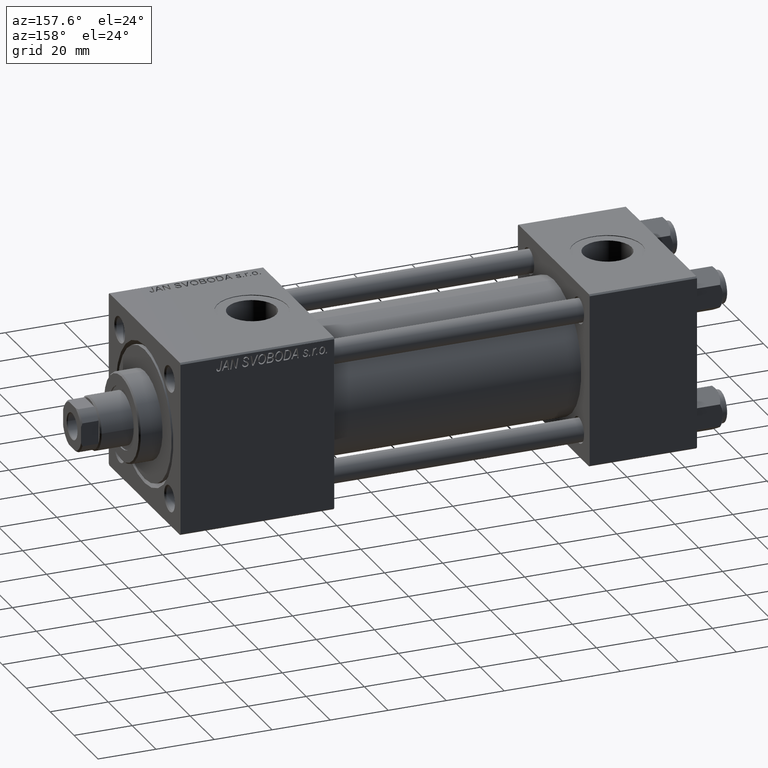
[diagram: clean part render]
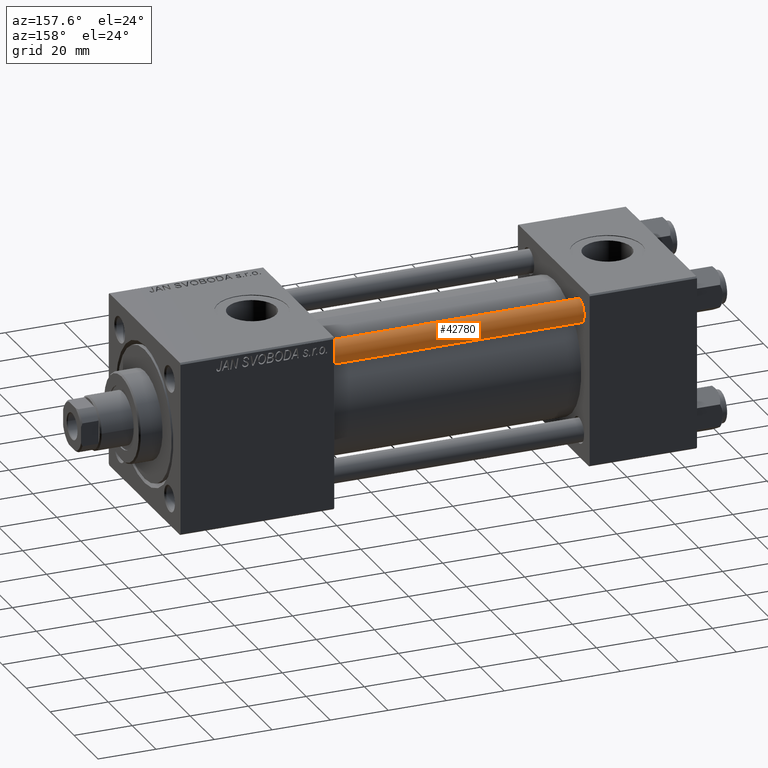
[diagram: same view with one face highlighted and labeled with its STEP entity id]
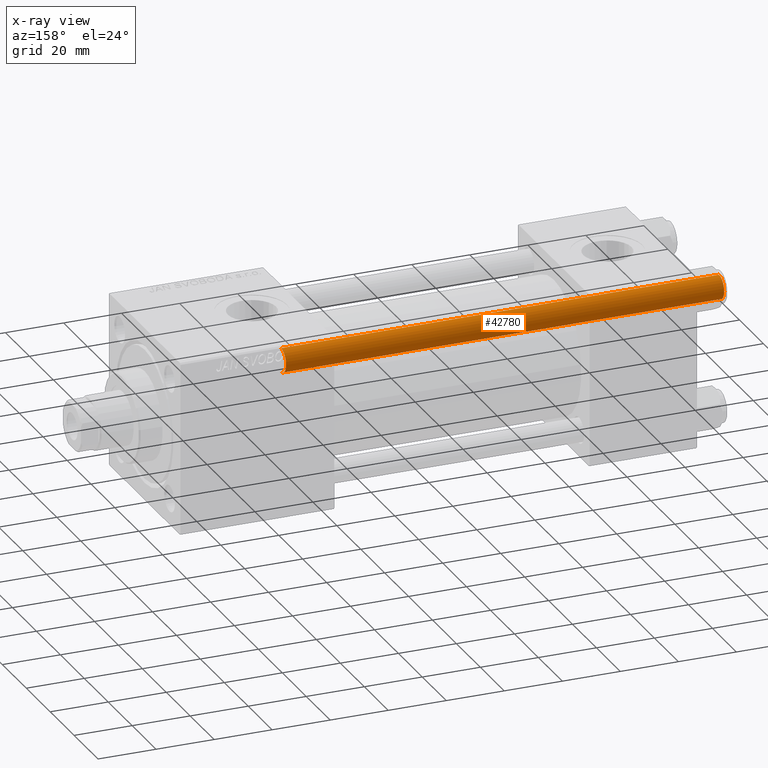
[diagram: x-ray of the same camera — body ghosted, the highlighted face saturated]
A machine part, auxiliary view. The second image highlights one B-rep face of the part: STEP entity #42780.
The next image is the same camera in x-ray: the body ghosted, the highlighted face saturated — about 0% of this face is hidden behind the body in this view.
In plain terms, the highlighted cylindrical surface (edge-blend (fillet) strip) has radius 4 mm, axis along (-1, 0, 0).
Its self-contained STEP definition (entity closure, byte-faithful):
#1547 = AXIS2_PLACEMENT_3D ( 'NONE', #27976, #36373, #7750 ) ;
#2598 = VERTEX_POINT ( 'NONE', #45184 ) ;
#2804 = CARTESIAN_POINT ( 'NONE',  ( -4.000000000000000000, 0.000000000000000000, 151.5000000000000284 ) ) ;
#3929 = CARTESIAN_POINT ( 'NONE',  ( 0.000000000000000000, 0.000000000000000000, 0.5000000000000281997 ) ) ;
#4211 = DIRECTION ( 'NONE',  ( -0.000000000000000000, -0.000000000000000000, -1.000000000000000000 ) ) ;
#4624 = CARTESIAN_POINT ( 'NONE',  ( -4.000000000000000000, 0.000000000000000000, 152.0000000000000000 ) ) ;
#7750 = DIRECTION ( 'NONE',  ( 1.000000000000000000, 0.000000000000000000, 0.000000000000000000 ) ) ;
#12916 = VERTEX_POINT ( 'NONE', #2804 ) ;
#13578 = CARTESIAN_POINT ( 'NONE',  ( 0.000000000000000000, 0.000000000000000000, 152.0000000000000000 ) ) ;
#14850 = VECTOR ( 'NONE', #4211, 1000.000000000000000 ) ;
#14993 = CIRCLE ( 'NONE', #1547, 4.000000000000000000 ) ;
#16243 = VERTEX_POINT ( 'NONE', #44582 ) ;
#17952 = CIRCLE ( 'NONE', #20460, 4.000000000000000000 ) ;
#18176 = ORIENTED_EDGE ( 'NONE', *, *, #45459, .F. ) ;
#18298 = DIRECTION ( 'NONE',  ( -1.000000000000000000, 0.000000000000000000, 0.000000000000000000 ) ) ;
#20460 = AXIS2_PLACEMENT_3D ( 'NONE', #3929, #27835, #36755 ) ;
#21130 = ORIENTED_EDGE ( 'NONE', *, *, #44405, .T. ) ;
#21965 = CYLINDRICAL_SURFACE ( 'NONE', #49123, 4.000000000000000000 ) ;
#24182 = LINE ( 'NONE', #40205, #14850 ) ;
#24895 = ORIENTED_EDGE ( 'NONE', *, *, #34468, .T. ) ;
#26183 = DIRECTION ( 'NONE',  ( -0.000000000000000000, -0.000000000000000000, -1.000000000000000000 ) ) ;
#26404 = CARTESIAN_POINT ( 'NONE',  ( 4.000000000000000000, 4.898587196589412829E-16, 151.5000000000000284 ) ) ;
#27835 = DIRECTION ( 'NONE',  ( -0.000000000000000000, -0.000000000000000000, 1.000000000000000000 ) ) ;
#27976 = CARTESIAN_POINT ( 'NONE',  ( 0.000000000000000000, 0.000000000000000000, 151.5000000000000284 ) ) ;
#29600 = FACE_OUTER_BOUND ( 'NONE', #31235, .T. ) ;
#31235 = EDGE_LOOP ( 'NONE', ( #38544, #21130, #24895, #18176 ) ) ;
#32996 = LINE ( 'NONE', #4624, #43393 ) ;
#34468 = EDGE_CURVE ( 'NONE', #2598, #16243, #17952, .T. ) ;
#36373 = DIRECTION ( 'NONE',  ( 0.000000000000000000, 0.000000000000000000, -1.000000000000000000 ) ) ;
#36667 = DIRECTION ( 'NONE',  ( -0.000000000000000000, -0.000000000000000000, -1.000000000000000000 ) ) ;
#36755 = DIRECTION ( 'NONE',  ( 1.000000000000000000, 0.000000000000000000, 0.000000000000000000 ) ) ;
#36761 = VERTEX_POINT ( 'NONE', #26404 ) ;
#38544 = ORIENTED_EDGE ( 'NONE', *, *, #41397, .T. ) ;
#40205 = CARTESIAN_POINT ( 'NONE',  ( 4.000000000000000000, 4.898587196589412829E-16, 152.0000000000000000 ) ) ;
#41397 = EDGE_CURVE ( 'NONE', #12916, #36761, #14993, .T. ) ;
#42780 = ADVANCED_FACE ( 'NONE', ( #29600 ), #21965, .T. ) ;
#43393 = VECTOR ( 'NONE', #36667, 1000.000000000000000 ) ;
#44405 = EDGE_CURVE ( 'NONE', #36761, #2598, #24182, .T. ) ;
#44582 = CARTESIAN_POINT ( 'NONE',  ( -4.000000000000000000, 0.000000000000000000, 0.5000000000000281997 ) ) ;
#45184 = CARTESIAN_POINT ( 'NONE',  ( 4.000000000000000000, 4.898587196589412829E-16, 0.5000000000000281997 ) ) ;
#45459 = EDGE_CURVE ( 'NONE', #12916, #16243, #32996, .T. ) ;
#49123 = AXIS2_PLACEMENT_3D ( 'NONE', #13578, #26183, #18298 ) ;